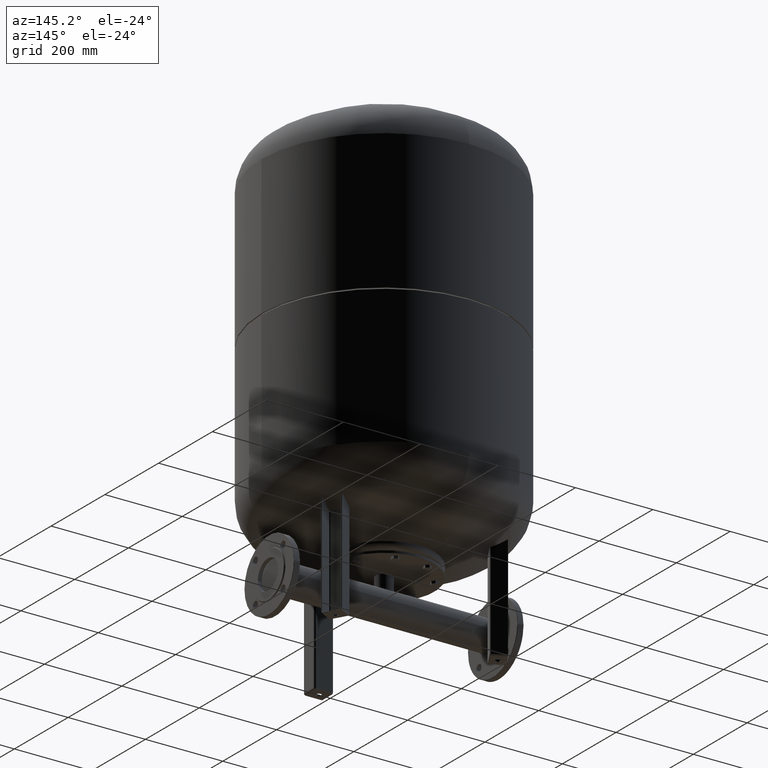
[diagram: clean part render]
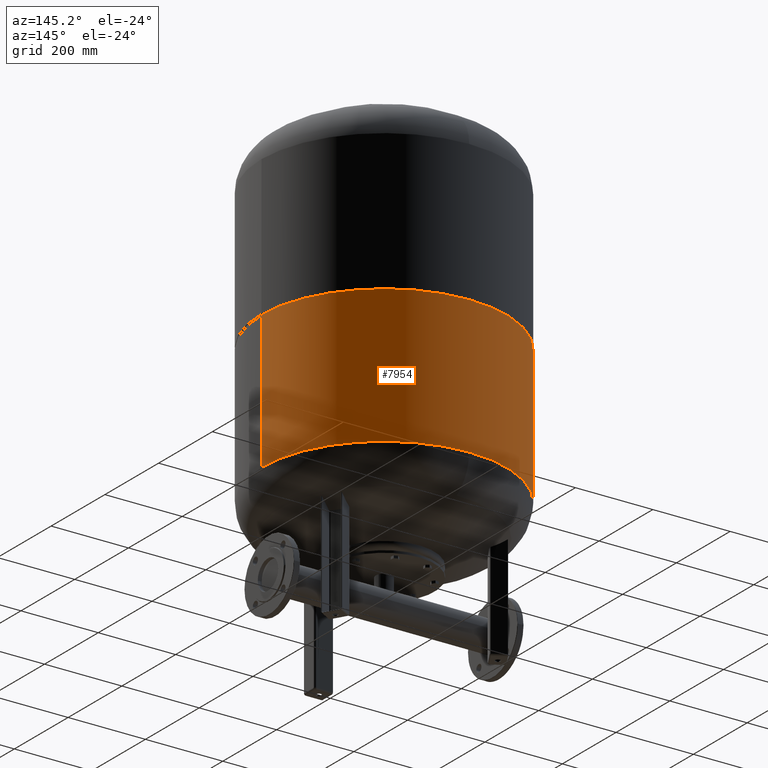
[diagram: same view with one face highlighted and labeled with its STEP entity id]
A machine part, auxiliary view. The second image highlights one B-rep face of the part: STEP entity #7954.
In plain terms, the highlighted cylindrical surface (partial cylindrical patch) has radius 317 mm, axis along (0, 0, 1).
Its self-contained STEP definition (entity closure, byte-faithful):
#7854=CARTESIAN_POINT('',(316.999999999999830,0.0,714.500000000000000));
#7855=VERTEX_POINT('',#7854);
#7871=CARTESIAN_POINT('',(-316.999999999999940,-3.882002E-014,714.500000000000000));
#7872=VERTEX_POINT('',#7871);
#7894=CARTESIAN_POINT('',(317.0,0.0,359.999999999999830));
#7895=VERTEX_POINT('',#7894);
#7896=CARTESIAN_POINT('',(316.999999999999830,0.0,714.500000000000000));
#7897=DIRECTION('',(0.0,0.0,-1.0));
#7898=VECTOR('',#7897,354.500000000000170);
#7899=LINE('',#7896,#7898);
#7900=EDGE_CURVE('',#7855,#7895,#7899,.T.);
#7903=CARTESIAN_POINT('',(-316.999999999999940,-3.882002E-014,359.999999999999890));
#7904=VERTEX_POINT('',#7903);
#7905=CARTESIAN_POINT('',(-316.999999999999940,-3.882002E-014,714.500000000000000));
#7906=DIRECTION('',(0.0,0.0,-1.0));
#7907=VECTOR('',#7906,354.500000000000110);
#7908=LINE('',#7905,#7907);
#7909=EDGE_CURVE('',#7872,#7904,#7908,.T.);
#7926=CARTESIAN_POINT('',(-1.668796E-014,0.0,359.999999999999830));
#7927=DIRECTION('',(0.0,0.0,1.0));
#7928=DIRECTION('',(1.0,0.0,0.0));
#7929=AXIS2_PLACEMENT_3D('',#7926,#7927,#7928);
#7930=CIRCLE('',#7929,317.0);
#7931=EDGE_CURVE('',#7895,#7904,#7930,.T.);
#7937=CARTESIAN_POINT('',(-9.262287E-015,0.0,519.299999999999950));
#7938=DIRECTION('',(4.661443E-017,0.0,1.0));
#7939=DIRECTION('',(1.0,0.0,0.0));
#7940=AXIS2_PLACEMENT_3D('',#7937,#7938,#7939);
#7941=CYLINDRICAL_SURFACE('',#7940,316.999999999999940);
#7942=ORIENTED_EDGE('',*,*,#7900,.T.);
#7943=ORIENTED_EDGE('',*,*,#7931,.T.);
#7944=ORIENTED_EDGE('',*,*,#7909,.F.);
#7945=CARTESIAN_POINT('',(-1.631505E-016,0.0,714.500000000000000));
#7946=DIRECTION('',(0.0,0.0,1.0));
#7947=DIRECTION('',(1.0,0.0,0.0));
#7948=AXIS2_PLACEMENT_3D('',#7945,#7946,#7947);
#7949=CIRCLE('',#7948,316.999999999999830);
#7950=EDGE_CURVE('',#7855,#7872,#7949,.T.);
#7951=ORIENTED_EDGE('',*,*,#7950,.F.);
#7952=EDGE_LOOP('',(#7942,#7943,#7944,#7951));
#7953=FACE_OUTER_BOUND('',#7952,.T.);
#7954=ADVANCED_FACE('',(#7953),#7941,.T.);